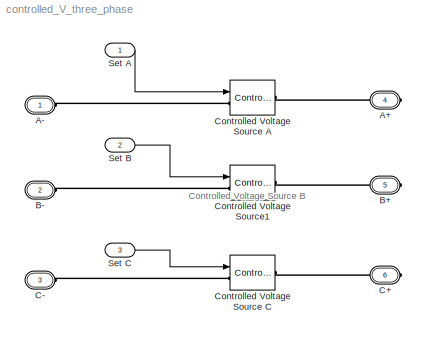
MODEL controlled_V_three_phase
KIND model
BLOCK [PMIOPort] A+
  Port = 4
  SID = 7
  Side = Right
  Tag = PMCPort
BLOCK [PMIOPort] A-
  Port = 1
  SID = 4
  Side = Left
  Tag = PMCPort
BLOCK [PMIOPort] B+
  Port = 5
  SID = 8
  Side = Right
  Tag = PMCPort
BLOCK [PMIOPort] B-
  Port = 2
  SID = 5
  Side = Left
  Tag = PMCPort
BLOCK [PMIOPort] C+
  Port = 6
  SID = 9
  Side = Right
  Tag = PMCPort
BLOCK [PMIOPort] C-
  Port = 3
  SID = 6
  Side = Left
  Tag = PMCPort
BLOCK [Reference] Controlled Voltage Source A  REF=powerlib/Electrical\nSources/Controlled Voltage Source
  Amplitude = 0
  Frequency = 0
  FunctionWithSeparateData = off
  GeneratePreprocessorConditionals = off
  Initialize = on
  Measurements = None
  Phase = 0
  Ports = [1, 0, 0, 0, 0, 1, 1]
  RTWMemSecDataConstants = Inherit from model
  RTWMemSecDataInternal = Inherit from model
  RTWMemSecDataParameters = Inherit from model
  RTWMemSecFuncExecute = Inherit from model
  RTWMemSecFuncInitTerm = Inherit from model
  SID = 1
  ShowPortLabels = FromPortIcon
  SourceBlock = powerlib/Electrical\nSources/Controlled Voltage Source
  SourceType = Controlled Voltage Source
  Source_Type = AC
  SystemSampleTime = -1
BLOCK [Reference] Controlled Voltage Source C  REF=powerlib/Electrical\nSources/Controlled Voltage Source
  Amplitude = 0
  Frequency = 0
  FunctionWithSeparateData = off
  GeneratePreprocessorConditionals = off
  Initialize = on
  Measurements = None
  Phase = 0
  Ports = [1, 0, 0, 0, 0, 1, 1]
  RTWMemSecDataConstants = Inherit from model
  RTWMemSecDataInternal = Inherit from model
  RTWMemSecDataParameters = Inherit from model
  RTWMemSecFuncExecute = Inherit from model
  RTWMemSecFuncInitTerm = Inherit from model
  SID = 3
  ShowPortLabels = FromPortIcon
  SourceBlock = powerlib/Electrical\nSources/Controlled Voltage Source
  SourceType = Controlled Voltage Source
  Source_Type = AC
  SystemSampleTime = -1
BLOCK [Reference] Controlled Voltage Source1  REF=powerlib/Electrical\nSources/Controlled Voltage Source
  Amplitude = 0
  Frequency = 0
  FunctionWithSeparateData = off
  GeneratePreprocessorConditionals = off
  Initialize = on
  Measurements = None
  Phase = 0
  Ports = [1, 0, 0, 0, 0, 1, 1]
  RTWMemSecDataConstants = Inherit from model
  RTWMemSecDataInternal = Inherit from model
  RTWMemSecDataParameters = Inherit from model
  RTWMemSecFuncExecute = Inherit from model
  RTWMemSecFuncInitTerm = Inherit from model
  SID = 2
  ShowPortLabels = FromPortIcon
  SourceBlock = powerlib/Electrical\nSources/Controlled Voltage Source
  SourceType = Controlled Voltage Source
  Source_Type = AC
  SystemSampleTime = -1
BLOCK [Inport] Set A
  IconDisplay = Port number
  PortDimensions = 1
  SID = 10
  VarSizeSig = No
BLOCK [Inport] Set B
  IconDisplay = Port number
  Port = 2
  PortDimensions = 1
  SID = 11
  VarSizeSig = No
BLOCK [Inport] Set C
  IconDisplay = Port number
  Port = 3
  PortDimensions = 1
  SID = 12
  VarSizeSig = No
ANNOTATION (root): Controlled Voltage Source B
LINE Set A:1 -> Controlled Voltage Source A:1
LINE Set B:1 -> Controlled Voltage Source1:1
LINE Set C:1 -> Controlled Voltage Source C:1
PLINE A+:RConn1 -- Controlled Voltage Source A:RConn1
PLINE A-:RConn1 -- Controlled Voltage Source A:LConn1
PLINE B+:RConn1 -- Controlled Voltage Source1:RConn1
PLINE B-:RConn1 -- Controlled Voltage Source1:LConn1
PLINE C+:RConn1 -- Controlled Voltage Source C:RConn1
PLINE C-:RConn1 -- Controlled Voltage Source C:LConn1
